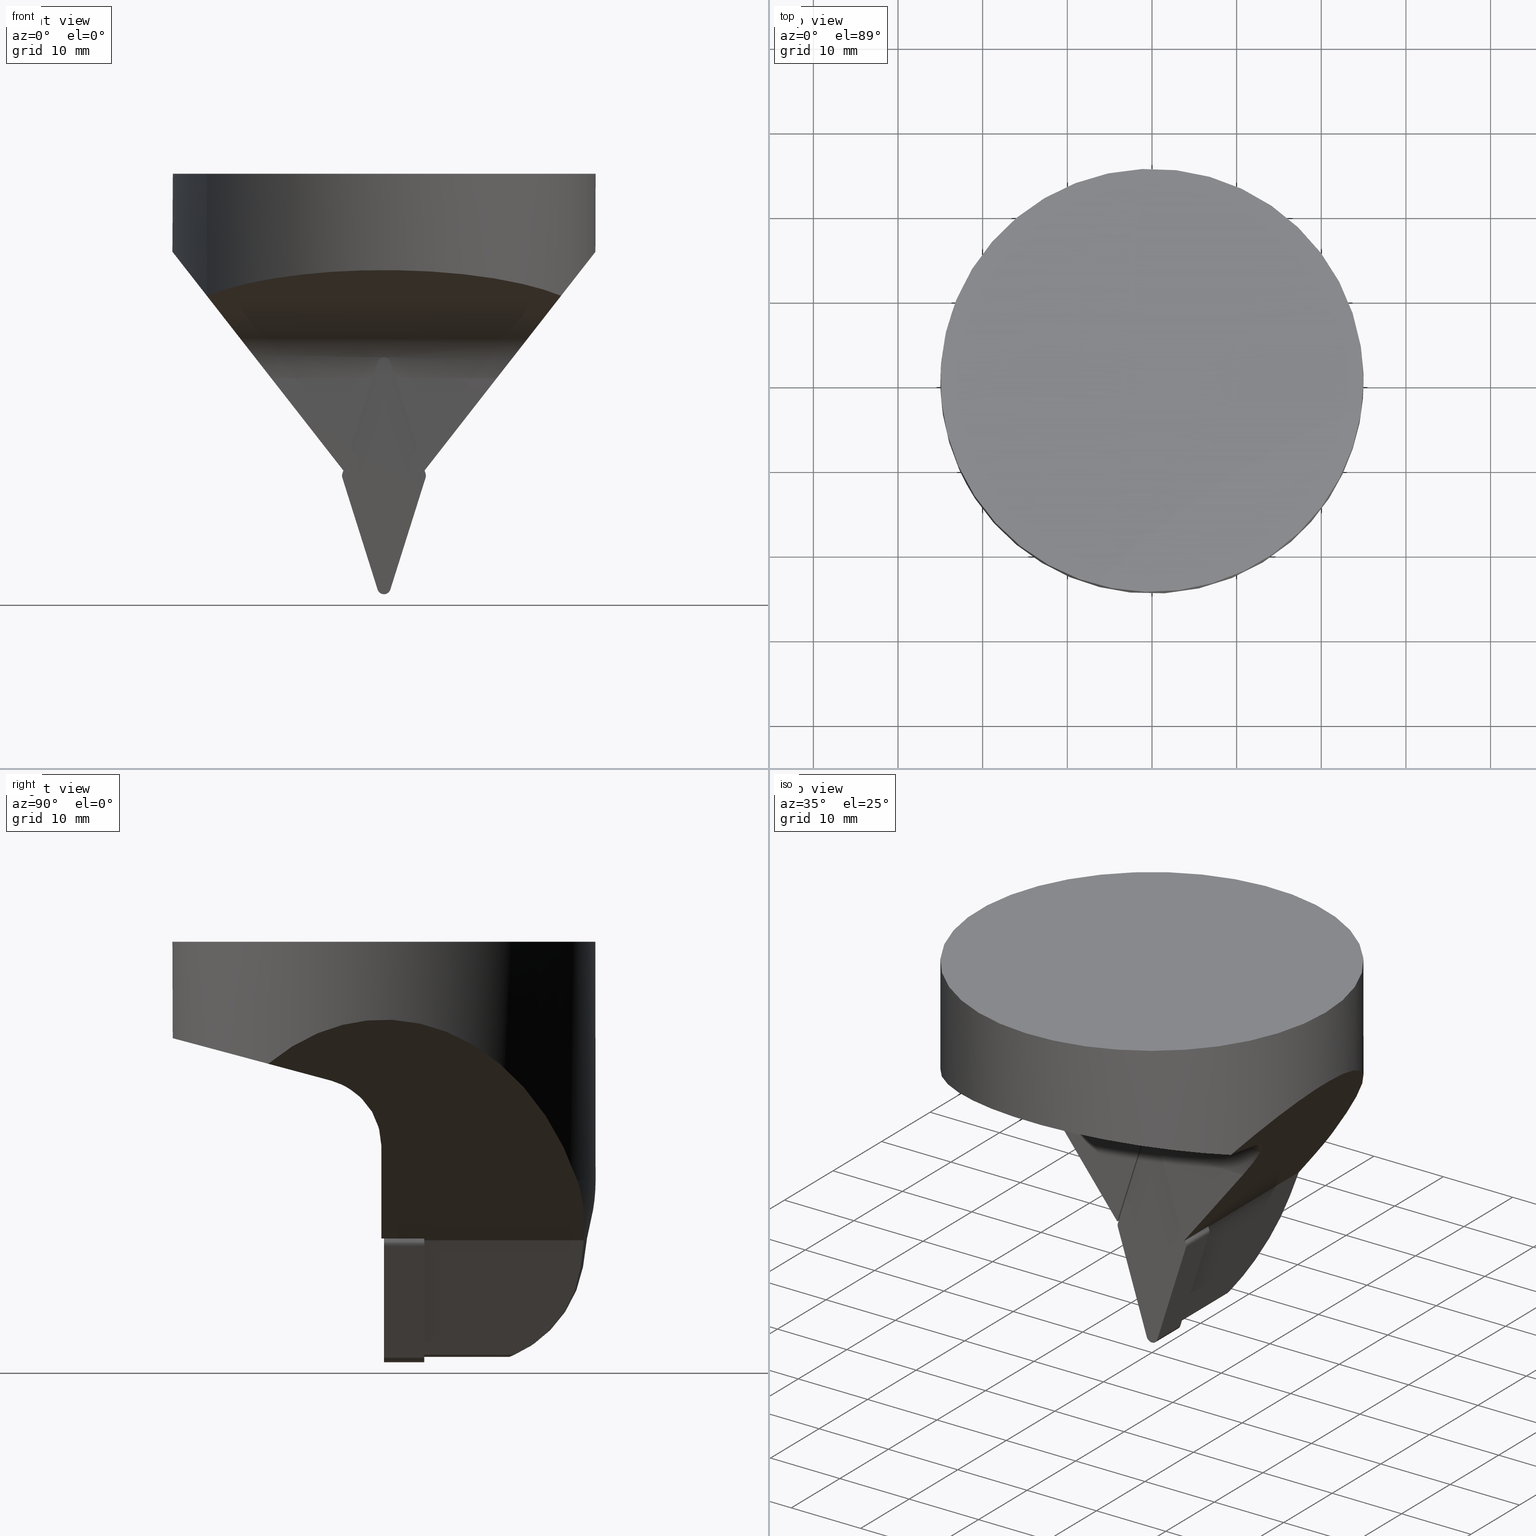
[diagram: canonical four-view strip — front | top / right | iso, engineering-drawing reading convention]
A machine part, canonical four-view strip (front | top / right | iso — engineering-drawing reading convention). The complete STEP part file that produces these views, byte-faithful:
ISO-10303-21;
HEADER;
FILE_DESCRIPTION((''),'1');
FILE_NAME('//Big_tech03/bigt/Translate/11_3D_Field/02_Step_Field/91_\X2\65CB524A30C430FC30EB\X0\/S\X2\30AB30FC30C830EA30C330B8\X0\/S50-SVQBN-00050-16.stp','2012-12-26T09:13:58',(''),(''),'Spatial Interop R18','Kubotek KeyCreator V8.5.1 (14335)',' ');
FILE_SCHEMA(('CONFIG_CONTROL_DESIGN'));
ENDSEC;
DATA;
#1=DESIGN_CONTEXT('',#27,'design');
#2=APPLICATION_PROTOCOL_DEFINITION('INTERNATIONAL STANDARD','config_control_design',1994,#27);
#3=PRODUCT_CATEGORY_RELATIONSHIP('NONE','NONE',#28,#29);
#4=DATE_AND_TIME(#30,#31);
#5=DATE_TIME_ROLE('creation_date');
#6=DATE_TIME_ROLE('classification_date');
#7=PERSON_AND_ORGANIZATION_ROLE('creator');
#8=PERSON_AND_ORGANIZATION_ROLE('design_supplier');
#9=PERSON_AND_ORGANIZATION_ROLE('classification_officer');
#10=PERSON_AND_ORGANIZATION_ROLE('design_owner');
#11=APPROVAL_PERSON_ORGANIZATION(#32,#33,#34);
#12=APPROVAL_DATE_TIME(#4,#33);
#13=CC_DESIGN_APPROVAL(#33,(#35,#36,#37));
#14=CC_DESIGN_DATE_AND_TIME_ASSIGNMENT(#4,#5,(#37));
#15=CC_DESIGN_DATE_AND_TIME_ASSIGNMENT(#4,#6,(#35));
#16=CC_DESIGN_PERSON_AND_ORGANIZATION_ASSIGNMENT(#32,#10,(#38));
#17=CC_DESIGN_PERSON_AND_ORGANIZATION_ASSIGNMENT(#32,#7,(#37));
#18=CC_DESIGN_PERSON_AND_ORGANIZATION_ASSIGNMENT(#32,#7,(#36));
#19=CC_DESIGN_PERSON_AND_ORGANIZATION_ASSIGNMENT(#32,#8,(#36));
#20=CC_DESIGN_SECURITY_CLASSIFICATION(#35,(#36));
#21=CC_DESIGN_PERSON_AND_ORGANIZATION_ASSIGNMENT(#32,#9,(#35));
#22=SHAPE_DEFINITION_REPRESENTATION(#39,#40);
#23= (GEOMETRIC_REPRESENTATION_CONTEXT(3)GLOBAL_UNCERTAINTY_ASSIGNED_CONTEXT((#43))GLOBAL_UNIT_ASSIGNED_CONTEXT((#45,#46,#47))REPRESENTATION_CONTEXT('NONE','WORKSPACE'));
#27=APPLICATION_CONTEXT('CONFIGURATION CONTROLLED 3D DESIGNS OF MECHANICAL PARTS AND ASSEMBLIES');
#28=PRODUCT_CATEGORY('part','NONE');
#29=PRODUCT_RELATED_PRODUCT_CATEGORY('detail',' ',(#38));
#30=CALENDAR_DATE(2012,26,11);
#31=LOCAL_TIME(18,13,58.0,#49);
#32=PERSON_AND_ORGANIZATION(#50,#51);
#33=APPROVAL(#52,'SOLID MODEL');
#34=APPROVAL_ROLE('APPROVED');
#35=SECURITY_CLASSIFICATION('','',#53);
#36=PRODUCT_DEFINITION_FORMATION_WITH_SPECIFIED_SOURCE(' ','NONE',#38,.NOT_KNOWN.);
#37=PRODUCT_DEFINITION('NONE','NONE',#36,#1);
#38=PRODUCT('1','1','PART-1-DESC',(#54));
#39=PRODUCT_DEFINITION_SHAPE('NONE','NONE',#37);
#40=ADVANCED_BREP_SHAPE_REPRESENTATION('1',(#55,#56),#23);
#43=UNCERTAINTY_MEASURE_WITH_UNIT(LENGTH_MEASURE(1.0E-006),#45,'','');
#45= (CONVERSION_BASED_UNIT('MILLIMETRE',#59)LENGTH_UNIT()NAMED_UNIT(#62));
#46= (NAMED_UNIT(#64)PLANE_ANGLE_UNIT()SI_UNIT($,.RADIAN.));
#47= (NAMED_UNIT(#64)SOLID_ANGLE_UNIT()SI_UNIT($,.STERADIAN.));
#49=COORDINATED_UNIVERSAL_TIME_OFFSET(9,0,.AHEAD.);
#50=PERSON('','UNSPECIFIED',$,$,$,$);
#51=ORGANIZATION('UNSPECIFIED','UNSPECIFIED','UNSPECIFIED');
#52=APPROVAL_STATUS('approved');
#53=SECURITY_CLASSIFICATION_LEVEL('unclassified');
#54=MECHANICAL_CONTEXT('',#27,'mechanical');
#55=MANIFOLD_SOLID_BREP('1',#70);
#56=AXIS2_PLACEMENT_3D('',#71,#72,#73);
#59=LENGTH_MEASURE_WITH_UNIT(LENGTH_MEASURE(1.0),#74);
#62=DIMENSIONAL_EXPONENTS(1.0,0.0,0.0,0.0,0.0,0.0,0.0);
#64=DIMENSIONAL_EXPONENTS(0.0,0.0,0.0,0.0,0.0,0.0,0.0);
#70=CLOSED_SHELL('',(#75,#76,#77,#78,#79,#80,#81,#82,#83,#84,#85,#86,#87,#88,#89,#90,#91,#92,#93,#94,#95,#96,#97,#98,#99,#100,#101,#102));
#71=CARTESIAN_POINT('',(0.0,0.0,0.0));
#72=DIRECTION('',(0.0,0.0,1.0));
#73=DIRECTION('',(1.0,0.0,0.0));
#74= (NAMED_UNIT(#62)LENGTH_UNIT()SI_UNIT(.MILLI.,.METRE.));
#75=ADVANCED_FACE('',(#104),#105,.T.);
#76=ADVANCED_FACE('',(#106),#107,.T.);
#77=ADVANCED_FACE('',(#108),#109,.T.);
#78=ADVANCED_FACE('',(#110),#111,.T.);
#79=ADVANCED_FACE('',(#112),#113,.T.);
#80=ADVANCED_FACE('',(#114),#115,.T.);
#81=ADVANCED_FACE('',(#116),#117,.T.);
#82=ADVANCED_FACE('',(#118),#119,.T.);
#83=ADVANCED_FACE('',(#120),#121,.F.);
#84=ADVANCED_FACE('',(#122),#123,.F.);
#85=ADVANCED_FACE('',(#124),#125,.F.);
#86=ADVANCED_FACE('',(#126),#127,.F.);
#87=ADVANCED_FACE('',(#128),#129,.F.);
#88=ADVANCED_FACE('',(#130),#131,.F.);
#89=ADVANCED_FACE('',(#132),#133,.F.);
#90=ADVANCED_FACE('',(#134),#135,.F.);
#91=ADVANCED_FACE('',(#136),#137,.T.);
#92=ADVANCED_FACE('',(#138),#139,.F.);
#93=ADVANCED_FACE('',(#140),#141,.T.);
#94=ADVANCED_FACE('',(#142,#143),#144,.T.);
#95=ADVANCED_FACE('',(#145),#146,.T.);
#96=ADVANCED_FACE('',(#147),#148,.T.);
#97=ADVANCED_FACE('',(#149),#150,.T.);
#98=ADVANCED_FACE('',(#151),#152,.T.);
#99=ADVANCED_FACE('',(#153),#154,.T.);
#100=ADVANCED_FACE('',(#155),#156,.F.);
#101=ADVANCED_FACE('',(#157),#158,.F.);
#102=ADVANCED_FACE('',(#159),#160,.F.);
#104=FACE_OUTER_BOUND('',#161,.T.);
#105=PLANE('',#162);
#106=FACE_OUTER_BOUND('',#163,.T.);
#107=CYLINDRICAL_SURFACE('',#164,0.8);
#108=FACE_OUTER_BOUND('',#165,.T.);
#109=PLANE('',#166);
#110=FACE_OUTER_BOUND('',#167,.T.);
#111=(B_SPLINE_SURFACE(1,2,((#169,#170,#171,#172,#173,#174,#175,#176,#177),(#178,#179,#180,#181,#182,#183,#184,#185,#186)),.UNSPECIFIED.,.F.,.T.,.F.)B_SPLINE_SURFACE_WITH_KNOTS((2,2),(3,2,2,2,3),(-5.71310793192006,0.0),(0.0,1.30874308776289,2.61748617552577,3.92622926328866,5.23497235105155),.UNSPECIFIED.)RATIONAL_B_SPLINE_SURFACE(((1.0,0.707106781186547,1.0,0.707106781186547,1.0,0.707106781186547,1.0,0.707106781186547,1.0),(1.0,0.707106781186547,1.0,0.707106781186547,1.0,0.707106781186547,1.0,0.707106781186547,1.0)))BOUNDED_SURFACE()REPRESENTATION_ITEM('')GEOMETRIC_REPRESENTATION_ITEM()SURFACE());
#112=FACE_OUTER_BOUND('',#193,.T.);
#113=PLANE('',#194);
#114=FACE_OUTER_BOUND('',#195,.T.);
#115=(B_SPLINE_SURFACE(1,2,((#197,#198,#199,#200,#201,#202,#203,#204,#205),(#206,#207,#208,#209,#210,#211,#212,#213,#214)),.UNSPECIFIED.,.F.,.T.,.F.)B_SPLINE_SURFACE_WITH_KNOTS((2,2),(3,2,2,2,3),(-5.92512168053696,0.0),(0.0,1.26191341185522,2.52382682371043,3.78574023556565,5.04765364742086),.UNSPECIFIED.)RATIONAL_B_SPLINE_SURFACE(((1.0,0.707106781186547,1.0,0.707106781186547,1.0,0.707106781186547,1.0,0.707106781186547,1.0),(1.0,0.707106781186547,1.0,0.707106781186547,1.0,0.707106781186547,1.0,0.707106781186547,1.0)))BOUNDED_SURFACE()REPRESENTATION_ITEM('')GEOMETRIC_REPRESENTATION_ITEM()SURFACE());
#116=FACE_OUTER_BOUND('',#221,.T.);
#117=PLANE('',#222);
#118=FACE_OUTER_BOUND('',#223,.T.);
#119=PLANE('',#224);
#120=FACE_OUTER_BOUND('',#225,.T.);
#121=PLANE('',#226);
#122=FACE_OUTER_BOUND('',#227,.T.);
#123=PLANE('',#228);
#124=FACE_OUTER_BOUND('',#229,.T.);
#125=(B_SPLINE_SURFACE(1,2,((#231,#232,#233,#234,#235,#236,#237,#238,#239),(#240,#241,#242,#243,#244,#245,#246,#247,#248)),.UNSPECIFIED.,.F.,.T.,.F.)B_SPLINE_SURFACE_WITH_KNOTS((2,2),(3,2,2,2,3),(-0.360069827642022,0.521709476953868),(0.0,1.30874308776289,2.61748617552578,3.92622926328866,5.23497235105155),.UNSPECIFIED.)RATIONAL_B_SPLINE_SURFACE(((1.0,0.707106781186547,1.0,0.707106781186547,1.0,0.707106781186547,1.0,0.707106781186547,1.0),(1.0,0.707106781186547,1.0,0.707106781186547,1.0,0.707106781186547,1.0,0.707106781186547,1.0)))BOUNDED_SURFACE()REPRESENTATION_ITEM('')GEOMETRIC_REPRESENTATION_ITEM()SURFACE());
#126=FACE_OUTER_BOUND('',#255,.T.);
#127=PLANE('',#256);
#128=FACE_OUTER_BOUND('',#257,.T.);
#129=CYLINDRICAL_SURFACE('',#258,8.0);
#130=FACE_OUTER_BOUND('',#259,.T.);
#131=PLANE('',#260);
#132=FACE_OUTER_BOUND('',#261,.T.);
#133=PLANE('',#262);
#134=FACE_OUTER_BOUND('',#263,.T.);
#135=PLANE('',#264);
#136=FACE_OUTER_BOUND('',#265,.T.);
#137=CYLINDRICAL_SURFACE('',#266,0.4);
#138=FACE_OUTER_BOUND('',#267,.T.);
#139=PLANE('',#268);
#140=FACE_OUTER_BOUND('',#269,.T.);
#141=TOROIDAL_SURFACE('',#270,9.72606554936144,13.9999999999999);
#142=FACE_BOUND('',#271,.T.);
#143=FACE_BOUND('',#272,.T.);
#144=CYLINDRICAL_SURFACE('',#273,25.0);
#145=FACE_OUTER_BOUND('',#274,.T.);
#146=TOROIDAL_SURFACE('',#275,4.99999999998082,20.0000000000001);
#147=FACE_OUTER_BOUND('',#276,.T.);
#148=TOROIDAL_SURFACE('',#277,9.72606554937411,13.9999999999999);
#149=FACE_OUTER_BOUND('',#278,.T.);
#150=CONICAL_SURFACE('',#279,23.2367301929155,0.174532924999441);
#151=FACE_OUTER_BOUND('',#280,.T.);
#152=TOROIDAL_SURFACE('',#281,5.00000000002026,19.9999999999999);
#153=FACE_OUTER_BOUND('',#282,.T.);
#154=PLANE('',#283);
#155=FACE_OUTER_BOUND('',#284,.T.);
#156=PLANE('',#285);
#157=FACE_OUTER_BOUND('',#286,.T.);
#158=PLANE('',#287);
#159=FACE_OUTER_BOUND('',#288,.T.);
#160=PLANE('',#289);
#161=EDGE_LOOP('',(#290,#291,#292,#293));
#162=AXIS2_PLACEMENT_3D('',#294,#295,#296);
#163=EDGE_LOOP('',(#297,#298,#299,#300));
#164=AXIS2_PLACEMENT_3D('',#301,#302,#303);
#165=EDGE_LOOP('',(#304,#305,#306,#307));
#166=AXIS2_PLACEMENT_3D('',#308,#309,#310);
#167=EDGE_LOOP('',(#311,#312,#313,#314));
#169=CARTESIAN_POINT('',(1.55004139944986E-006,6.21724893790088E-015,-48.0119974350419));
#170=CARTESIAN_POINT('',(-0.799998449958602,6.21724893790088E-015,-48.0119974350419));
#171=CARTESIAN_POINT('',(-0.799998449958599,6.21724893790088E-015,-48.8451691616611));
#172=CARTESIAN_POINT('',(-0.799998449958597,6.21724893790088E-015,-49.6783408882804));
#173=CARTESIAN_POINT('',(1.55004140434762E-006,6.21724893790088E-015,-49.6783408882804));
#174=CARTESIAN_POINT('',(0.800001550041405,6.21724893790088E-015,-49.6783408882804));
#175=CARTESIAN_POINT('',(0.800001550041403,6.21724893790088E-015,-48.8451691616611));
#176=CARTESIAN_POINT('',(0.800001550041401,6.21724893790088E-015,-48.0119974350419));
#177=CARTESIAN_POINT('',(1.55004139944986E-006,6.21724893790088E-015,-48.0119974350419));
#178=CARTESIAN_POINT('',(1.55004139944986E-006,4.76000000000001,-48.0119974350419));
#179=CARTESIAN_POINT('',(-0.799998449958602,4.76000000000001,-48.0119974350419));
#180=CARTESIAN_POINT('',(-0.799998449958599,4.76000000000001,-48.8451691616611));
#181=CARTESIAN_POINT('',(-0.799998449958597,4.76000000000001,-49.6783408882804));
#182=CARTESIAN_POINT('',(1.55004140434762E-006,4.76000000000001,-49.6783408882804));
#183=CARTESIAN_POINT('',(0.800001550041405,4.76000000000001,-49.6783408882804));
#184=CARTESIAN_POINT('',(0.800001550041403,4.76000000000001,-48.8451691616611));
#185=CARTESIAN_POINT('',(0.800001550041401,4.76000000000001,-48.0119974350419));
#186=CARTESIAN_POINT('',(1.55004139944986E-006,4.76000000000001,-48.0119974350419));
#193=EDGE_LOOP('',(#315,#316,#317,#318));
#194=AXIS2_PLACEMENT_3D('',#319,#320,#321);
#195=EDGE_LOOP('',(#322,#323,#324,#325));
#197=CARTESIAN_POINT('',(-3.3482319105922,6.21724893790088E-015,-35.6779999999999));
#198=CARTESIAN_POINT('',(-3.3482319105922,6.21724893790088E-015,-34.8779999999999));
#199=CARTESIAN_POINT('',(-4.15159093959506,6.21724893790088E-015,-34.8779999999999));
#200=CARTESIAN_POINT('',(-4.95494996859793,6.21724893790088E-015,-34.8779999999999));
#201=CARTESIAN_POINT('',(-4.95494996859793,6.21724893790088E-015,-35.6779999999999));
#202=CARTESIAN_POINT('',(-4.95494996859793,6.21724893790088E-015,-36.4779999999999));
#203=CARTESIAN_POINT('',(-4.15159093959506,6.21724893790088E-015,-36.4779999999999));
#204=CARTESIAN_POINT('',(-3.3482319105922,6.21724893790088E-015,-36.4779999999999));
#205=CARTESIAN_POINT('',(-3.3482319105922,6.21724893790088E-015,-35.6779999999999));
#206=CARTESIAN_POINT('',(-3.3482319105922,4.76000000000001,-35.6779999999999));
#207=CARTESIAN_POINT('',(-3.3482319105922,4.76000000000001,-34.8779999999999));
#208=CARTESIAN_POINT('',(-4.15159093959506,4.76000000000001,-34.8779999999999));
#209=CARTESIAN_POINT('',(-4.95494996859793,4.76000000000001,-34.8779999999999));
#210=CARTESIAN_POINT('',(-4.95494996859793,4.76000000000001,-35.6779999999999));
#211=CARTESIAN_POINT('',(-4.95494996859793,4.76000000000001,-36.4779999999999));
#212=CARTESIAN_POINT('',(-4.15159093959506,4.76000000000001,-36.4779999999999));
#213=CARTESIAN_POINT('',(-3.3482319105922,4.76000000000001,-36.4779999999999));
#214=CARTESIAN_POINT('',(-3.3482319105922,4.76000000000001,-35.6779999999999));
#221=EDGE_LOOP('',(#326,#327,#328,#329));
#222=AXIS2_PLACEMENT_3D('',#330,#331,#332);
#223=EDGE_LOOP('',(#333,#334,#335,#336,#337,#338,#339,#340,#341,#342,#343,#344));
#224=AXIS2_PLACEMENT_3D('',#345,#346,#347);
#225=EDGE_LOOP('',(#348,#349,#350,#351,#352,#353,#354,#355,#356,#357));
#226=AXIS2_PLACEMENT_3D('',#358,#359,#360);
#227=EDGE_LOOP('',(#361,#362,#363,#364,#365));
#228=AXIS2_PLACEMENT_3D('',#366,#367,#368);
#229=EDGE_LOOP('',(#369,#370,#371,#372));
#231=CARTESIAN_POINT('',(1.55004126281065E-006,7.21644966006352E-015,-21.6776591117197));
#232=CARTESIAN_POINT('',(0.800001550041263,7.21644966006352E-015,-21.6776591117197));
#233=CARTESIAN_POINT('',(0.800001550041265,7.21644966006352E-015,-22.510830838339));
#234=CARTESIAN_POINT('',(0.800001550041266,7.21644966006352E-015,-23.3440025649582));
#235=CARTESIAN_POINT('',(1.55004126565152E-006,7.21644966006352E-015,-23.3440025649582));
#236=CARTESIAN_POINT('',(-0.799998449958735,7.21644966006352E-015,-23.3440025649582));
#237=CARTESIAN_POINT('',(-0.799998449958736,7.21644966006352E-015,-22.510830838339));
#238=CARTESIAN_POINT('',(-0.799998449958737,7.21644966006352E-015,-21.6776591117197));
#239=CARTESIAN_POINT('',(1.55004126281065E-006,7.21644966006352E-015,-21.6776591117197));
#240=CARTESIAN_POINT('',(1.55004126281065E-006,-0.734673585707276,-21.6776591117197));
#241=CARTESIAN_POINT('',(0.800001550041263,-0.734673585707276,-21.6776591117197));
#242=CARTESIAN_POINT('',(0.800001550041265,-0.734673585707276,-22.510830838339));
#243=CARTESIAN_POINT('',(0.800001550041266,-0.734673585707276,-23.3440025649582));
#244=CARTESIAN_POINT('',(1.55004126565152E-006,-0.734673585707276,-23.3440025649582));
#245=CARTESIAN_POINT('',(-0.799998449958735,-0.734673585707276,-23.3440025649582));
#246=CARTESIAN_POINT('',(-0.799998449958736,-0.734673585707276,-22.510830838339));
#247=CARTESIAN_POINT('',(-0.799998449958737,-0.734673585707276,-21.6776591117197));
#248=CARTESIAN_POINT('',(1.55004126281065E-006,-0.734673585707276,-21.6776591117197));
#255=EDGE_LOOP('',(#373,#374,#375,#376,#377));
#256=AXIS2_PLACEMENT_3D('',#378,#379,#380);
#257=EDGE_LOOP('',(#381,#382,#383,#384,#385,#386,#387,#388));
#258=AXIS2_PLACEMENT_3D('',#389,#390,#391);
#259=EDGE_LOOP('',(#392,#393,#394));
#260=AXIS2_PLACEMENT_3D('',#395,#396,#397);
#261=EDGE_LOOP('',(#398,#399,#400,#401,#402,#403,#404,#405,#406,#407));
#262=AXIS2_PLACEMENT_3D('',#408,#409,#410);
#263=EDGE_LOOP('',(#411,#412,#413,#414,#415));
#264=AXIS2_PLACEMENT_3D('',#416,#417,#418);
#265=EDGE_LOOP('',(#419,#420,#421,#422,#423));
#266=AXIS2_PLACEMENT_3D('',#424,#425,#426);
#267=EDGE_LOOP('',(#427,#428,#429));
#268=AXIS2_PLACEMENT_3D('',#430,#431,#432);
#269=EDGE_LOOP('',(#433,#434,#435,#436));
#270=AXIS2_PLACEMENT_3D('',#437,#438,#439);
#271=EDGE_LOOP('',(#440));
#272=EDGE_LOOP('',(#441,#442,#443,#444,#445));
#273=AXIS2_PLACEMENT_3D('',#446,#447,#448);
#274=EDGE_LOOP('',(#449,#450,#451,#452));
#275=AXIS2_PLACEMENT_3D('',#453,#454,#455);
#276=EDGE_LOOP('',(#456,#457,#458,#459));
#277=AXIS2_PLACEMENT_3D('',#460,#461,#462);
#278=EDGE_LOOP('',(#463,#464,#465,#466,#467,#468,#469,#470));
#279=AXIS2_PLACEMENT_3D('',#471,#472,#473);
#280=EDGE_LOOP('',(#474,#475,#476,#477));
#281=AXIS2_PLACEMENT_3D('',#478,#479,#480);
#282=EDGE_LOOP('',(#481));
#283=AXIS2_PLACEMENT_3D('',#482,#483,#484);
#284=EDGE_LOOP('',(#485,#486,#487,#488));
#285=AXIS2_PLACEMENT_3D('',#489,#490,#491);
#286=EDGE_LOOP('',(#492,#493,#494,#495,#496,#497,#498,#499,#500,#501));
#287=AXIS2_PLACEMENT_3D('',#502,#503,#504);
#288=EDGE_LOOP('',(#505,#506,#507,#508,#509));
#289=AXIS2_PLACEMENT_3D('',#510,#511,#512);
#290=ORIENTED_EDGE('',*,*,#513,.F.);
#291=ORIENTED_EDGE('',*,*,#514,.T.);
#292=ORIENTED_EDGE('',*,*,#515,.F.);
#293=ORIENTED_EDGE('',*,*,#516,.T.);
#294=CARTESIAN_POINT('',(4.79834896927209,4.76000000000001,-35.0586746368965));
#295=DIRECTION('',(0.953716950798277,0.0,0.300705799345533));
#296=DIRECTION('',(0.300705799345533,0.0,-0.953716950798277));
#297=ORIENTED_EDGE('',*,*,#517,.T.);
#298=ORIENTED_EDGE('',*,*,#518,.F.);
#299=ORIENTED_EDGE('',*,*,#519,.T.);
#300=ORIENTED_EDGE('',*,*,#515,.T.);
#301=CARTESIAN_POINT('',(4.15479820841177,4.76000000000001,-35.6780000076533));
#302=DIRECTION('',(-0.0,1.0,-0.0));
#303=DIRECTION('',(0.953716950698177,0.0,-0.300705799663013));
#304=ORIENTED_EDGE('',*,*,#520,.T.);
#305=ORIENTED_EDGE('',*,*,#521,.F.);
#306=ORIENTED_EDGE('',*,*,#522,.T.);
#307=ORIENTED_EDGE('',*,*,#518,.T.);
#308=CARTESIAN_POINT('',(4.91777176897031,4.76000000000001,-35.9185646473837));
#309=DIRECTION('',(0.953716950698177,0.0,-0.300705799663012));
#310=DIRECTION('',(-0.300705799663012,0.0,-0.953716950698177));
#311=ORIENTED_EDGE('',*,*,#523,.T.);
#312=ORIENTED_EDGE('',*,*,#524,.F.);
#313=ORIENTED_EDGE('',*,*,#525,.T.);
#314=ORIENTED_EDGE('',*,*,#521,.T.);
#315=ORIENTED_EDGE('',*,*,#526,.T.);
#316=ORIENTED_EDGE('',*,*,#527,.F.);
#317=ORIENTED_EDGE('',*,*,#528,.T.);
#318=ORIENTED_EDGE('',*,*,#524,.T.);
#319=CARTESIAN_POINT('',(-0.760068665811087,4.76000000000001,-49.1051043592734));
#320=DIRECTION('',(-0.953716950748227,0.0,-0.300705799504273));
#321=DIRECTION('',(-0.300705799504273,0.0,0.953716950748227));
#322=ORIENTED_EDGE('',*,*,#529,.T.);
#323=ORIENTED_EDGE('',*,*,#530,.F.);
#324=ORIENTED_EDGE('',*,*,#531,.T.);
#325=ORIENTED_EDGE('',*,*,#527,.T.);
#326=ORIENTED_EDGE('',*,*,#532,.F.);
#327=ORIENTED_EDGE('',*,*,#533,.T.);
#328=ORIENTED_EDGE('',*,*,#530,.T.);
#329=ORIENTED_EDGE('',*,*,#534,.T.);
#330=CARTESIAN_POINT('',(-4.91805730008617,4.76000000000001,-35.4383507814787));
#331=DIRECTION('',(-0.953716950748228,0.0,0.300705799504268));
#332=DIRECTION('',(0.300705799504268,0.0,0.953716950748228));
#333=ORIENTED_EDGE('',*,*,#535,.F.);
#334=ORIENTED_EDGE('',*,*,#516,.F.);
#335=ORIENTED_EDGE('',*,*,#519,.F.);
#336=ORIENTED_EDGE('',*,*,#522,.F.);
#337=ORIENTED_EDGE('',*,*,#525,.F.);
#338=ORIENTED_EDGE('',*,*,#528,.F.);
#339=ORIENTED_EDGE('',*,*,#531,.F.);
#340=ORIENTED_EDGE('',*,*,#533,.F.);
#341=ORIENTED_EDGE('',*,*,#536,.F.);
#342=ORIENTED_EDGE('',*,*,#537,.F.);
#343=ORIENTED_EDGE('',*,*,#538,.F.);
#344=ORIENTED_EDGE('',*,*,#539,.F.);
#345=CARTESIAN_POINT('',(-4.73169356123709E-006,4.76000000000001,-42.353558676864));
#346=DIRECTION('',(-1.17863195093133E-031,1.0,4.4177459658526E-030));
#347=DIRECTION('',(0.0,-4.4177459658526E-030,1.0));
#348=ORIENTED_EDGE('',*,*,#534,.F.);
#349=ORIENTED_EDGE('',*,*,#529,.F.);
#350=ORIENTED_EDGE('',*,*,#526,.F.);
#351=ORIENTED_EDGE('',*,*,#523,.F.);
#352=ORIENTED_EDGE('',*,*,#520,.F.);
#353=ORIENTED_EDGE('',*,*,#517,.F.);
#354=ORIENTED_EDGE('',*,*,#514,.F.);
#355=ORIENTED_EDGE('',*,*,#540,.F.);
#356=ORIENTED_EDGE('',*,*,#541,.F.);
#357=ORIENTED_EDGE('',*,*,#542,.F.);
#358=CARTESIAN_POINT('',(-4.73169356124143E-006,7.21644966006352E-015,-42.353558676864));
#359=DIRECTION('',(3.14366464482046E-031,1.0,1.50022068683728E-030));
#360=DIRECTION('',(0.0,-1.50022068683728E-030,1.0));
#361=ORIENTED_EDGE('',*,*,#542,.T.);
#362=ORIENTED_EDGE('',*,*,#543,.F.);
#363=ORIENTED_EDGE('',*,*,#544,.F.);
#364=ORIENTED_EDGE('',*,*,#545,.F.);
#365=ORIENTED_EDGE('',*,*,#546,.F.);
#366=CARTESIAN_POINT('',(-0.760068665811215,-0.299999999999994,-22.2508956407267));
#367=DIRECTION('',(-0.953716950748228,0.0,0.300705799504269));
#368=DIRECTION('',(0.300705799504269,0.0,0.953716950748228));
#369=ORIENTED_EDGE('',*,*,#541,.T.);
#370=ORIENTED_EDGE('',*,*,#547,.F.);
#371=ORIENTED_EDGE('',*,*,#548,.F.);
#372=ORIENTED_EDGE('',*,*,#543,.T.);
#373=ORIENTED_EDGE('',*,*,#540,.T.);
#374=ORIENTED_EDGE('',*,*,#549,.F.);
#375=ORIENTED_EDGE('',*,*,#550,.F.);
#376=ORIENTED_EDGE('',*,*,#551,.F.);
#377=ORIENTED_EDGE('',*,*,#547,.T.);
#378=CARTESIAN_POINT('',(4.91777176901035,-0.299999999999994,-35.4374353680499));
#379=DIRECTION('',(0.953716950798277,0.0,0.300705799345533));
#380=DIRECTION('',(0.300705799345533,0.0,-0.953716950798277));
#381=ORIENTED_EDGE('',*,*,#544,.T.);
#382=ORIENTED_EDGE('',*,*,#548,.T.);
#383=ORIENTED_EDGE('',*,*,#551,.T.);
#384=ORIENTED_EDGE('',*,*,#552,.T.);
#385=ORIENTED_EDGE('',*,*,#553,.T.);
#386=ORIENTED_EDGE('',*,*,#554,.T.);
#387=ORIENTED_EDGE('',*,*,#555,.T.);
#388=ORIENTED_EDGE('',*,*,#556,.T.);
#389=CARTESIAN_POINT('',(4.13874011839544E-013,-8.29999999999999,-24.1386159038317));
#390=DIRECTION('',(1.0,-0.0,-0.0));
#391=DIRECTION('',(0.0,0.793353340291236,0.60876142900872));
#392=ORIENTED_EDGE('',*,*,#550,.T.);
#393=ORIENTED_EDGE('',*,*,#557,.F.);
#394=ORIENTED_EDGE('',*,*,#552,.F.);
#395=CARTESIAN_POINT('',(5.22721637762618E-013,-0.299999999999994,-18.0));
#396=DIRECTION('',(0.0,1.0,0.0));
#397=DIRECTION('',(0.0,0.0,1.0));
#398=ORIENTED_EDGE('',*,*,#549,.T.);
#399=ORIENTED_EDGE('',*,*,#513,.T.);
#400=ORIENTED_EDGE('',*,*,#535,.T.);
#401=ORIENTED_EDGE('',*,*,#558,.F.);
#402=ORIENTED_EDGE('',*,*,#559,.F.);
#403=ORIENTED_EDGE('',*,*,#560,.F.);
#404=ORIENTED_EDGE('',*,*,#561,.F.);
#405=ORIENTED_EDGE('',*,*,#562,.T.);
#406=ORIENTED_EDGE('',*,*,#553,.F.);
#407=ORIENTED_EDGE('',*,*,#557,.T.);
#408=CARTESIAN_POINT('',(4.63994938400571,-1.93761558541869E-015,-35.2614168606011));
#409=DIRECTION('',(-0.788010753606722,1.31871149599113E-016,0.615661475325658));
#410=DIRECTION('',(0.615661475325658,0.0,0.788010753606722));
#411=ORIENTED_EDGE('',*,*,#539,.T.);
#412=ORIENTED_EDGE('',*,*,#563,.F.);
#413=ORIENTED_EDGE('',*,*,#564,.F.);
#414=ORIENTED_EDGE('',*,*,#565,.F.);
#415=ORIENTED_EDGE('',*,*,#558,.T.);
#416=CARTESIAN_POINT('',(-7.22280345365487,-1.1381589884931E-015,-72.8852621022449));
#417=DIRECTION('',(-0.953716950748227,1.48403700808922E-016,0.300705799504273));
#418=DIRECTION('',(0.300705799504273,6.59044822310593E-033,0.953716950748227));
#419=ORIENTED_EDGE('',*,*,#538,.T.);
#420=ORIENTED_EDGE('',*,*,#566,.T.);
#421=ORIENTED_EDGE('',*,*,#567,.T.);
#422=ORIENTED_EDGE('',*,*,#568,.T.);
#423=ORIENTED_EDGE('',*,*,#563,.T.);
#424=CARTESIAN_POINT('',(-2.93073999577297E-007,-1.58582700582256E-015,-48.6472533302848));
#425=DIRECTION('',(-0.0,-1.0,-0.0));
#426=DIRECTION('',(0.0,0.0,-1.0));
#427=ORIENTED_EDGE('',*,*,#545,.T.);
#428=ORIENTED_EDGE('',*,*,#556,.F.);
#429=ORIENTED_EDGE('',*,*,#569,.F.);
#430=CARTESIAN_POINT('',(5.22721637762618E-013,-0.299999999999994,-18.0));
#431=DIRECTION('',(0.0,1.0,0.0));
#432=DIRECTION('',(0.0,0.0,1.0));
#433=ORIENTED_EDGE('',*,*,#568,.F.);
#434=ORIENTED_EDGE('',*,*,#570,.F.);
#435=ORIENTED_EDGE('',*,*,#571,.T.);
#436=ORIENTED_EDGE('',*,*,#564,.T.);
#437=CARTESIAN_POINT('',(-1.53224655186079E-012,-1.44728673490135E-011,-35.9999999999923));
#438=DIRECTION('',(-5.80440954780609E-014,-7.9766655402929E-013,-1.0));
#439=DIRECTION('',(-0.996980749790134,0.0776491117006681,-4.06925352310013E-015));
#440=ORIENTED_EDGE('',*,*,#572,.F.);
#441=ORIENTED_EDGE('',*,*,#561,.T.);
#442=ORIENTED_EDGE('',*,*,#573,.F.);
#443=ORIENTED_EDGE('',*,*,#574,.F.);
#444=ORIENTED_EDGE('',*,*,#575,.T.);
#445=ORIENTED_EDGE('',*,*,#576,.T.);
#446=CARTESIAN_POINT('',(3.95709471477376E-014,-9.91480993004866E-016,-25.0));
#447=DIRECTION('',(-0.0,-0.0,-1.0));
#448=DIRECTION('',(-1.0,0.0,0.0));
#449=ORIENTED_EDGE('',*,*,#577,.F.);
#450=ORIENTED_EDGE('',*,*,#573,.T.);
#451=ORIENTED_EDGE('',*,*,#560,.T.);
#452=ORIENTED_EDGE('',*,*,#578,.T.);
#453=CARTESIAN_POINT('',(2.93376434257198E-012,1.8908208332391E-011,-28.2502267297535));
#454=DIRECTION('',(-9.48031728153588E-012,-6.08017856103217E-011,1.0));
#455=DIRECTION('',(0.978377770261617,-0.206825865543716,-3.30005025217652E-012));
#456=ORIENTED_EDGE('',*,*,#567,.F.);
#457=ORIENTED_EDGE('',*,*,#579,.T.);
#458=ORIENTED_EDGE('',*,*,#580,.T.);
#459=ORIENTED_EDGE('',*,*,#570,.T.);
#460=CARTESIAN_POINT('',(8.40993941153556E-014,-2.72226685638088E-011,-35.9999999999872));
#461=DIRECTION('',(7.99993850962098E-015,-1.32317231493844E-012,-1.0));
#462=DIRECTION('',(-0.996980748810494,-0.0776491242788137,9.47673868391809E-014));
#463=ORIENTED_EDGE('',*,*,#565,.T.);
#464=ORIENTED_EDGE('',*,*,#571,.F.);
#465=ORIENTED_EDGE('',*,*,#580,.F.);
#466=ORIENTED_EDGE('',*,*,#581,.T.);
#467=ORIENTED_EDGE('',*,*,#582,.T.);
#468=ORIENTED_EDGE('',*,*,#583,.F.);
#469=ORIENTED_EDGE('',*,*,#578,.F.);
#470=ORIENTED_EDGE('',*,*,#559,.T.);
#471=CARTESIAN_POINT('',(3.77945903083374E-014,-1.37188709364429E-015,-40.000000000001));
#472=DIRECTION('',(-0.0,-0.0,1.0));
#473=DIRECTION('',(1.0,0.0,0.0));
#474=ORIENTED_EDGE('',*,*,#577,.T.);
#475=ORIENTED_EDGE('',*,*,#583,.T.);
#476=ORIENTED_EDGE('',*,*,#584,.T.);
#477=ORIENTED_EDGE('',*,*,#574,.T.);
#478=CARTESIAN_POINT('',(4.10352307689266E-012,-1.97419858238845E-011,-28.2502267296943));
#479=DIRECTION('',(9.82398194209891E-012,-4.87179384742911E-011,1.0));
#480=DIRECTION('',(0.978377767610177,0.206825878086197,4.64564881941152E-013));
#481=ORIENTED_EDGE('',*,*,#572,.T.);
#482=CARTESIAN_POINT('',(-12.5,1.49034295752804E-015,7.105427357601E-015));
#483=DIRECTION('',(0.0,0.0,1.0));
#484=DIRECTION('',(1.0,0.0,0.0));
#485=ORIENTED_EDGE('',*,*,#576,.F.);
#486=ORIENTED_EDGE('',*,*,#585,.F.);
#487=ORIENTED_EDGE('',*,*,#554,.F.);
#488=ORIENTED_EDGE('',*,*,#562,.F.);
#489=CARTESIAN_POINT('',(6.41794578793122E-013,-28.378692565242,-10.4763370026216));
#490=DIRECTION('',(1.61745616900077E-014,0.258819045102522,0.965925826289068));
#491=DIRECTION('',(1.0,6.53351123865643E-031,-1.67451384462384E-014));
#492=ORIENTED_EDGE('',*,*,#532,.T.);
#493=ORIENTED_EDGE('',*,*,#546,.T.);
#494=ORIENTED_EDGE('',*,*,#569,.T.);
#495=ORIENTED_EDGE('',*,*,#555,.F.);
#496=ORIENTED_EDGE('',*,*,#585,.T.);
#497=ORIENTED_EDGE('',*,*,#575,.F.);
#498=ORIENTED_EDGE('',*,*,#584,.F.);
#499=ORIENTED_EDGE('',*,*,#582,.F.);
#500=ORIENTED_EDGE('',*,*,#586,.F.);
#501=ORIENTED_EDGE('',*,*,#536,.T.);
#502=CARTESIAN_POINT('',(-110.119418697202,1.84505484374191E-014,99.7461465047559));
#503=DIRECTION('',(0.788010753606722,-1.00731325110704E-016,0.615661475325658));
#504=DIRECTION('',(0.615661475325658,0.0,-0.788010753606722));
#505=ORIENTED_EDGE('',*,*,#537,.T.);
#506=ORIENTED_EDGE('',*,*,#586,.T.);
#507=ORIENTED_EDGE('',*,*,#581,.F.);
#508=ORIENTED_EDGE('',*,*,#579,.F.);
#509=ORIENTED_EDGE('',*,*,#566,.F.);
#510=CARTESIAN_POINT('',(-4.63994997015373,-5.65813683394641E-016,-35.2614168606011));
#511=DIRECTION('',(0.953716950748227,-1.32815430293717E-016,0.300705799504273));
#512=DIRECTION('',(0.300705799504273,5.89818994950329E-033,-0.953716950748227));
#513=EDGE_CURVE('',#587,#588,#589,.T.);
#514=EDGE_CURVE('',#587,#590,#591,.T.);
#515=EDGE_CURVE('',#592,#590,#593,.T.);
#516=EDGE_CURVE('',#592,#588,#594,.T.);
#517=EDGE_CURVE('',#590,#595,#596,.T.);
#518=EDGE_CURVE('',#597,#595,#598,.T.);
#519=EDGE_CURVE('',#597,#592,#599,.T.);
#520=EDGE_CURVE('',#595,#600,#601,.T.);
#521=EDGE_CURVE('',#602,#600,#603,.T.);
#522=EDGE_CURVE('',#602,#597,#604,.T.);
#523=EDGE_CURVE('',#600,#605,#606,.T.);
#524=EDGE_CURVE('',#607,#605,#608,.T.);
#525=EDGE_CURVE('',#607,#602,#609,.T.);
#526=EDGE_CURVE('',#605,#610,#611,.T.);
#527=EDGE_CURVE('',#612,#610,#613,.T.);
#528=EDGE_CURVE('',#612,#607,#614,.T.);
#529=EDGE_CURVE('',#610,#615,#616,.T.);
#530=EDGE_CURVE('',#617,#615,#618,.T.);
#531=EDGE_CURVE('',#617,#612,#619,.T.);
#532=EDGE_CURVE('',#620,#621,#622,.T.);
#533=EDGE_CURVE('',#620,#617,#623,.T.);
#534=EDGE_CURVE('',#615,#621,#624,.T.);
#535=EDGE_CURVE('',#588,#625,#626,.T.);
#536=EDGE_CURVE('',#627,#620,#628,.T.);
#537=EDGE_CURVE('',#629,#627,#630,.T.);
#538=EDGE_CURVE('',#631,#629,#632,.T.);
#539=EDGE_CURVE('',#625,#631,#633,.T.);
#540=EDGE_CURVE('',#634,#587,#635,.T.);
#541=EDGE_CURVE('',#636,#634,#637,.T.);
#542=EDGE_CURVE('',#621,#636,#638,.T.);
#543=EDGE_CURVE('',#639,#636,#640,.T.);
#544=EDGE_CURVE('',#641,#639,#642,.T.);
#545=EDGE_CURVE('',#643,#641,#644,.T.);
#546=EDGE_CURVE('',#621,#643,#645,.T.);
#547=EDGE_CURVE('',#646,#634,#647,.T.);
#548=EDGE_CURVE('',#639,#646,#648,.T.);
#549=EDGE_CURVE('',#649,#587,#650,.T.);
#550=EDGE_CURVE('',#651,#649,#652,.T.);
#551=EDGE_CURVE('',#646,#651,#653,.T.);
#552=EDGE_CURVE('',#651,#654,#655,.T.);
#553=EDGE_CURVE('',#654,#656,#657,.T.);
#554=EDGE_CURVE('',#656,#658,#659,.T.);
#555=EDGE_CURVE('',#658,#660,#661,.T.);
#556=EDGE_CURVE('',#660,#641,#662,.T.);
#557=EDGE_CURVE('',#654,#649,#663,.T.);
#558=EDGE_CURVE('',#664,#625,#665,.T.);
#559=EDGE_CURVE('',#666,#664,#667,.T.);
#560=EDGE_CURVE('',#668,#666,#669,.T.);
#561=EDGE_CURVE('',#670,#668,#671,.T.);
#562=EDGE_CURVE('',#670,#656,#672,.T.);
#563=EDGE_CURVE('',#673,#631,#674,.T.);
#564=EDGE_CURVE('',#675,#673,#676,.T.);
#565=EDGE_CURVE('',#664,#675,#677,.T.);
#566=EDGE_CURVE('',#629,#678,#679,.T.);
#567=EDGE_CURVE('',#678,#680,#681,.T.);
#568=EDGE_CURVE('',#680,#673,#682,.T.);
#569=EDGE_CURVE('',#643,#660,#683,.T.);
#570=EDGE_CURVE('',#684,#680,#685,.T.);
#571=EDGE_CURVE('',#684,#675,#686,.T.);
#572=EDGE_CURVE('',#687,#687,#688,.T.);
#573=EDGE_CURVE('',#689,#668,#690,.T.);
#574=EDGE_CURVE('',#691,#689,#692,.T.);
#575=EDGE_CURVE('',#691,#693,#694,.T.);
#576=EDGE_CURVE('',#693,#670,#695,.T.);
#577=EDGE_CURVE('',#689,#696,#697,.T.);
#578=EDGE_CURVE('',#666,#696,#698,.T.);
#579=EDGE_CURVE('',#678,#699,#700,.T.);
#580=EDGE_CURVE('',#699,#684,#701,.T.);
#581=EDGE_CURVE('',#699,#702,#703,.T.);
#582=EDGE_CURVE('',#702,#704,#705,.T.);
#583=EDGE_CURVE('',#696,#704,#706,.T.);
#584=EDGE_CURVE('',#704,#691,#707,.T.);
#585=EDGE_CURVE('',#658,#693,#708,.T.);
#586=EDGE_CURVE('',#627,#702,#709,.T.);
#587=VERTEX_POINT('',#710);
#588=VERTEX_POINT('',#711);
#589=LINE('',#712,#713);
#590=VERTEX_POINT('',#714);
#591=LINE('',#715,#716);
#592=VERTEX_POINT('',#717);
#593=LINE('',#718,#719);
#594=LINE('',#720,#721);
#595=VERTEX_POINT('',#722);
#596=CIRCLE('',#723,0.8);
#597=VERTEX_POINT('',#724);
#598=LINE('',#725,#726);
#599=CIRCLE('',#727,0.8);
#600=VERTEX_POINT('',#728);
#601=LINE('',#729,#730);
#602=VERTEX_POINT('',#731);
#603=LINE('',#732,#733);
#604=LINE('',#734,#735);
#605=VERTEX_POINT('',#736);
#606=ELLIPSE('',#737,0.833171726619255,0.8);
#607=VERTEX_POINT('',#738);
#608=LINE('',#739,#740);
#609=ELLIPSE('',#741,0.833171726619255,0.8);
#610=VERTEX_POINT('',#742);
#611=LINE('',#743,#744);
#612=VERTEX_POINT('',#745);
#613=LINE('',#746,#747);
#614=LINE('',#748,#749);
#615=VERTEX_POINT('',#750);
#616=ELLIPSE('',#751,0.803359029002865,0.8);
#617=VERTEX_POINT('',#752);
#618=LINE('',#753,#754);
#619=ELLIPSE('',#755,0.803359029002865,0.8);
#620=VERTEX_POINT('',#756);
#621=VERTEX_POINT('',#757);
#622=LINE('',#758,#759);
#623=LINE('',#760,#761);
#624=LINE('',#762,#763);
#625=VERTEX_POINT('',#764);
#626=LINE('',#765,#766);
#627=VERTEX_POINT('',#767);
#628=LINE('',#768,#769);
#629=VERTEX_POINT('',#770);
#630=LINE('',#771,#772);
#631=VERTEX_POINT('',#773);
#632=CIRCLE('',#774,0.4);
#633=LINE('',#775,#776);
#634=VERTEX_POINT('',#777);
#635=LINE('',#778,#779);
#636=VERTEX_POINT('',#780);
#637=ELLIPSE('',#781,0.833171726619255,0.8);
#638=LINE('',#782,#783);
#639=VERTEX_POINT('',#784);
#640=LINE('',#785,#786);
#641=VERTEX_POINT('',#787);
#642=ELLIPSE('',#788,8.38823300112647,8.0);
#643=VERTEX_POINT('',#789);
#644=LINE('',#790,#791);
#645=LINE('',#792,#793);
#646=VERTEX_POINT('',#794);
#647=LINE('',#795,#796);
#648=B_SPLINE_CURVE_WITH_KNOTS('',3,(#797,#798,#799,#800,#801,#802,#803,#804,#805,#806,#807,#808,#809,#810,#811,#812,#813,#814),.UNSPECIFIED.,.F.,.F.,(4,2,2,2,2,2,2,2,4),(0.149925910773781,0.156383037177052,0.188858211951973,0.218962825548049,0.249067439144125,0.279172052740201,0.309276666336277,0.341751841111199,0.34820896751447),.UNSPECIFIED.);
#649=VERTEX_POINT('',#815);
#650=LINE('',#816,#817);
#651=VERTEX_POINT('',#818);
#652=LINE('',#819,#820);
#653=ELLIPSE('',#821,8.38823300068628,8.0);
#654=VERTEX_POINT('',#822);
#655=LINE('',#823,#824);
#656=VERTEX_POINT('',#825);
#657=ELLIPSE('',#826,10.1521457205805,8.0);
#658=VERTEX_POINT('',#827);
#659=LINE('',#828,#829);
#660=VERTEX_POINT('',#830);
#661=ELLIPSE('',#831,10.1521457205808,8.0);
#662=LINE('',#832,#833);
#663=LINE('',#834,#835);
#664=VERTEX_POINT('',#836);
#665=LINE('',#837,#838);
#666=VERTEX_POINT('',#839);
#667=ELLIPSE('',#840,39.4060995806154,23.6348780647814);
#668=VERTEX_POINT('',#841);
#669=CIRCLE('',#842,20.4956155323028);
#670=VERTEX_POINT('',#843);
#671=ELLIPSE('',#844,40.6067311370686,25.0);
#672=LINE('',#845,#846);
#673=VERTEX_POINT('',#847);
#674=LINE('',#848,#849);
#675=VERTEX_POINT('',#850);
#676=B_SPLINE_CURVE_WITH_KNOTS('',3,(#851,#852,#853,#854,#855,#856,#857,#858,#859,#860,#861,#862,#863,#864,#865,#866,#867,#868,#869,#870,#871,#872,#873,#874,#875,#876),.UNSPECIFIED.,.F.,.F.,(4,2,2,2,2,2,2,2,2,2,2,2,4),(-28.6007282508324,-28.4422377030003,-26.7706772018078,-25.1187501837178,-23.4668231656277,-21.8148961475377,-20.1629691294477,-18.5470699180555,-16.9311707066633,-15.3152714952712,-13.699372283879,-12.0899666676129,-10.5423890887149),.UNSPECIFIED.);
#677=ELLIPSE('',#877,103.925919639352,25.9074131871865);
#678=VERTEX_POINT('',#878);
#679=LINE('',#879,#880);
#680=VERTEX_POINT('',#881);
#681=B_SPLINE_CURVE_WITH_KNOTS('',3,(#882,#883,#884,#885,#886,#887,#888,#889,#890,#891,#892,#893,#894,#895,#896,#897,#898,#899,#900,#901,#902,#903,#904,#905,#906,#907,#908,#909,#910,#911,#912,#913,#914,#915,#916,#917,#918,#919,#920,#921,#922),.UNSPECIFIED.,.T.,.F.,(4,2,2,2,2,2,2,2,2,2,2,2,2,2,3,2,2,2,2,4),(-2.43274666690621,-2.28114219619236,-1.84495887869286,-1.66475233971386,-1.55745814073838,-1.48053160744821,-1.40936691632283,-1.32834513892176,-1.21429714245235,-1.01901087649785,-0.68400882404814,-0.33914980407382,-0.142526088860495,-0.0603317944277701,-0.0,0.0378750454681853,0.103804179732211,0.216442526206478,0.457721073030557,0.74754113694424),.UNSPECIFIED.);
#682=B_SPLINE_CURVE_WITH_KNOTS('',3,(#923,#924,#925,#926,#927,#928,#929,#930,#931,#932,#933,#934),.UNSPECIFIED.,.F.,.F.,(4,2,2,2,2,4),(0.224012469510803,0.264954944128367,0.342867439977357,0.517703955011655,0.958614291220311,1.06187839733653),.UNSPECIFIED.);
#683=LINE('',#935,#936);
#684=VERTEX_POINT('',#937);
#685=CIRCLE('',#938,14.0);
#686=CIRCLE('',#939,23.5133740915204);
#687=VERTEX_POINT('',#940);
#688=CIRCLE('',#941,25.0);
#689=VERTEX_POINT('',#942);
#690=CIRCLE('',#943,25.0);
#691=VERTEX_POINT('',#944);
#692=CIRCLE('',#945,25.0);
#693=VERTEX_POINT('',#946);
#694=ELLIPSE('',#947,40.6067311370686,25.0);
#695=ELLIPSE('',#948,25.8819045102521,25.0);
#696=VERTEX_POINT('',#949);
#697=CIRCLE('',#950,20.0);
#698=CIRCLE('',#951,24.696155060248);
#699=VERTEX_POINT('',#952);
#700=B_SPLINE_CURVE_WITH_KNOTS('',3,(#953,#954,#955,#956,#957,#958,#959,#960,#961,#962,#963,#964,#965,#966,#967,#968,#969,#970,#971,#972,#973,#974,#975,#976,#977,#978),.UNSPECIFIED.,.F.,.F.,(4,2,2,2,2,2,2,2,2,2,2,2,4),(10.5423889278189,12.0899668108894,13.6993723905468,15.315271560272,16.9311707299973,18.5470698997225,20.1629690694478,21.8148960465064,23.466823023565,25.1187500006237,26.7706769776823,28.4422374397231,28.6007280228852),.UNSPECIFIED.);
#701=CIRCLE('',#979,23.5133740915204);
#702=VERTEX_POINT('',#980);
#703=ELLIPSE('',#981,103.925918053196,25.9074127917782);
#704=VERTEX_POINT('',#982);
#705=ELLIPSE('',#983,39.406099354214,23.6348779289911);
#706=CIRCLE('',#984,24.696155060248);
#707=CIRCLE('',#985,20.5080994719775);
#708=LINE('',#986,#987);
#709=LINE('',#988,#989);
#710=CARTESIAN_POINT('',(4.79834896927209,6.10622663543836E-015,-35.0586746368965));
#711=CARTESIAN_POINT('',(4.79834896927209,4.76000000000001,-35.0586746368965));
#712=CARTESIAN_POINT('',(4.79834896927209,-0.149999999999998,-35.0586746368965));
#713=VECTOR('',#990,10.0);
#714=CARTESIAN_POINT('',(4.91777176901035,7.21644966006352E-015,-35.4374353680499));
#715=CARTESIAN_POINT('',(4.91777176901035,6.10622663543836E-015,-35.4374353680499));
#716=VECTOR('',#991,10.0);
#717=CARTESIAN_POINT('',(4.91777176901035,4.76000000000001,-35.4374353680499));
#718=CARTESIAN_POINT('',(4.91777176901035,4.76000000000001,-35.4374353680499));
#719=VECTOR('',#992,10.0);
#720=CARTESIAN_POINT('',(4.91777176901035,4.76000000000001,-35.4374353680499));
#721=VECTOR('',#993,10.0);
#722=CARTESIAN_POINT('',(4.91777176897031,7.21644966006352E-015,-35.9185646473837));
#723=AXIS2_PLACEMENT_3D('',#994,#995,#996);
#724=CARTESIAN_POINT('',(4.91777176897031,4.76000000000001,-35.9185646473837));
#725=CARTESIAN_POINT('',(4.91777176897031,4.76000000000001,-35.9185646473837));
#726=VECTOR('',#997,10.0);
#727=AXIS2_PLACEMENT_3D('',#998,#999,#1000);
#728=CARTESIAN_POINT('',(0.760071765850954,7.21644966006352E-015,-49.1051043594096));
#729=CARTESIAN_POINT('',(0.760071765850954,6.10622663543836E-015,-49.1051043594096));
#730=VECTOR('',#1001,10.0);
#731=CARTESIAN_POINT('',(0.760071765850954,4.76000000000001,-49.1051043594096));
#732=CARTESIAN_POINT('',(0.760071765850954,4.76000000000001,-49.1051043594096));
#733=VECTOR('',#1002,10.0);
#734=CARTESIAN_POINT('',(0.760071765850954,4.76000000000001,-49.1051043594096));
#735=VECTOR('',#1003,10.0);
#736=CARTESIAN_POINT('',(-0.760068665811087,7.21644966006352E-015,-49.1051043592734));
#737=AXIS2_PLACEMENT_3D('',#1004,#1005,#1006);
#738=CARTESIAN_POINT('',(-0.760068665811087,4.76000000000001,-49.1051043592734));
#739=CARTESIAN_POINT('',(-0.760068665811087,4.76000000000001,-49.1051043592734));
#740=VECTOR('',#1007,10.0);
#741=AXIS2_PLACEMENT_3D('',#1008,#1009,#1010);
#742=CARTESIAN_POINT('',(-4.91805730008616,7.21644966006352E-015,-35.9176492185212));
#743=CARTESIAN_POINT('',(-4.91805730008617,6.10622663543836E-015,-35.9176492185212));
#744=VECTOR('',#1011,10.0);
#745=CARTESIAN_POINT('',(-4.91805730008616,4.76000000000001,-35.9176492185212));
#746=CARTESIAN_POINT('',(-4.91805730008616,4.76000000000001,-35.9176492185212));
#747=VECTOR('',#1012,10.0);
#748=CARTESIAN_POINT('',(-4.91805730008617,4.76000000000001,-35.9176492185212));
#749=VECTOR('',#1013,10.0);
#750=CARTESIAN_POINT('',(-4.91805730008617,7.21644966006352E-015,-35.4383507814787));
#751=AXIS2_PLACEMENT_3D('',#1014,#1015,#1016);
#752=CARTESIAN_POINT('',(-4.91805730008617,4.76000000000001,-35.4383507814787));
#753=CARTESIAN_POINT('',(-4.91805730008617,4.76000000000001,-35.4383507814787));
#754=VECTOR('',#1017,10.0);
#755=AXIS2_PLACEMENT_3D('',#1018,#1019,#1020);
#756=CARTESIAN_POINT('',(-4.79834693075406,4.76000000000001,-35.058677996316));
#757=CARTESIAN_POINT('',(-4.79834693075405,6.10622663543836E-015,-35.058677996316));
#758=CARTESIAN_POINT('',(-4.79834693075404,-0.149999999999981,-35.058677996316));
#759=VECTOR('',#1021,10.0);
#760=CARTESIAN_POINT('',(-0.760068665811217,4.76000000000001,-22.2508956407267));
#761=VECTOR('',#1022,10.0);
#762=CARTESIAN_POINT('',(-0.760068665811217,6.10622663543836E-015,-22.2508956407267));
#763=VECTOR('',#1023,10.0);
#764=CARTESIAN_POINT('',(4.63994938400572,4.76000000000001,-35.2614168606011));
#765=CARTESIAN_POINT('',(3.65953530546444,4.76000000000001,-36.5162896565143));
#766=VECTOR('',#1024,10.0);
#767=CARTESIAN_POINT('',(-4.63994997015373,4.76000000000001,-35.2614168606011));
#768=CARTESIAN_POINT('',(-56.3992718643848,4.76000000000001,30.987494085908));
#769=VECTOR('',#1025,10.0);
#770=CARTESIAN_POINT('',(-0.381487073373295,4.76000000000001,-48.7675356500865));
#771=CARTESIAN_POINT('',(-4.3704332405219,4.76000000000001,-36.1162147194514));
#772=VECTOR('',#1026,10.0);
#773=CARTESIAN_POINT('',(0.381486487225292,4.76000000000001,-48.7675356500865));
#774=AXIS2_PLACEMENT_3D('',#1027,#1028,#1029);
#775=CARTESIAN_POINT('',(-1.56094414836045,4.76000000000001,-54.9281385578613));
#776=VECTOR('',#1030,10.0);
#777=CARTESIAN_POINT('',(0.760071765893744,7.21644966006352E-015,-22.2508956407267));
#778=CARTESIAN_POINT('',(5.68716065228313,7.21644966006351E-015,-37.8776251526501));
#779=VECTOR('',#1031,10.0);
#780=CARTESIAN_POINT('',(-0.760068665811215,7.21644966006352E-015,-22.2508956407267));
#781=AXIS2_PLACEMENT_3D('',#1032,#1033,#1034);
#782=CARTESIAN_POINT('',(-3.60830811999585,7.21644966006352E-015,-31.2843570895047));
#783=VECTOR('',#1035,10.0);
#784=CARTESIAN_POINT('',(-0.760068665811215,-0.525907628008078,-22.2508956407267));
#785=CARTESIAN_POINT('',(-0.760068665811215,-0.299999999999994,-22.2508956407267));
#786=VECTOR('',#1036,10.0);
#787=CARTESIAN_POINT('',(-1.35526457851046,-0.299999999999998,-24.1386159038315));
#788=AXIS2_PLACEMENT_3D('',#1037,#1038,#1039);
#789=CARTESIAN_POINT('',(-4.79834693075404,-0.299999999999999,-35.0586779963159));
#790=CARTESIAN_POINT('',(-0.116151056481158,-0.299999999999994,-20.2086498978253));
#791=VECTOR('',#1040,10.0);
#792=CARTESIAN_POINT('',(-4.79834693075404,-0.149999999999981,-35.058677996316));
#793=VECTOR('',#1041,10.0);
#794=CARTESIAN_POINT('',(0.760071765893744,-0.525907628008079,-22.2508956407267));
#795=CARTESIAN_POINT('',(0.760071765893744,-0.299999999999994,-22.2508956407267));
#796=VECTOR('',#1042,10.0);
#797=CARTESIAN_POINT('',(-0.760068665811215,-0.525907628008078,-22.2508956407267));
#798=CARTESIAN_POINT('',(-0.753369979562982,-0.531066506219202,-22.2296501222391));
#799=CARTESIAN_POINT('',(-0.74583105163664,-0.536263075239024,-22.2086304653977));
#800=CARTESIAN_POINT('',(-0.695493848666107,-0.567616760810326,-22.0839251523522));
#801=CARTESIAN_POINT('',(-0.632043323748769,-0.593888666783762,-21.9887291574988));
#802=CARTESIAN_POINT('',(-0.488442266034527,-0.635975399692769,-21.8433981256044));
#803=CARTESIAN_POINT('',(-0.400661124385253,-0.655021022895603,-21.7814599247199));
#804=CARTESIAN_POINT('',(-0.206638054254816,-0.681075760337488,-21.6985582553078));
#805=CARTESIAN_POINT('',(-0.100347161945656,-0.687924614971409,-21.6776591117197));
#806=CARTESIAN_POINT('',(0.100350262028184,-0.687924614971409,-21.6776591117197));
#807=CARTESIAN_POINT('',(0.206641154337344,-0.681075760337488,-21.6985582553078));
#808=CARTESIAN_POINT('',(0.400664224467781,-0.655021022895603,-21.7814599247199));
#809=CARTESIAN_POINT('',(0.488445366117055,-0.635975399692769,-21.8433981256044));
#810=CARTESIAN_POINT('',(0.632046423831297,-0.593888666783762,-21.9887291574988));
#811=CARTESIAN_POINT('',(0.695496948748635,-0.567616760810326,-22.0839251523522));
#812=CARTESIAN_POINT('',(0.745834151719168,-0.536263075239024,-22.2086304653977));
#813=CARTESIAN_POINT('',(0.75337307964551,-0.531066506219203,-22.2296501222391));
#814=CARTESIAN_POINT('',(0.760071765893744,-0.525907628008079,-22.2508956407267));
#815=CARTESIAN_POINT('',(4.79834896927207,-0.299999999999998,-35.0586746368965));
#816=CARTESIAN_POINT('',(4.79834896927209,-0.149999999999998,-35.0586746368965));
#817=VECTOR('',#1043,10.0);
#818=CARTESIAN_POINT('',(1.35526767824757,-0.299999999999998,-24.1386159038315));
#819=CARTESIAN_POINT('',(2.1950040182872,-0.299999999999994,-26.8019193168024));
#820=VECTOR('',#1044,10.0);
#821=AXIS2_PLACEMENT_3D('',#1045,#1046,#1047);
#822=CARTESIAN_POINT('',(13.3300338980246,-0.299999999999994,-24.1386159038319));
#823=CARTESIAN_POINT('',(-13.330034484173,-0.299999999999998,-24.1386159038315));
#824=VECTOR('',#1048,26.6600683821976);
#825=CARTESIAN_POINT('',(19.3673456128347,-6.22944763917982,-16.4112092935195));
#826=AXIS2_PLACEMENT_3D('',#1049,#1050,#1051);
#827=CARTESIAN_POINT('',(-19.3673461989833,-6.22944763917983,-16.4112092935189));
#828=CARTESIAN_POINT('',(19.3673456128347,-6.22944763917982,-16.4112092935195));
#829=VECTOR('',#1052,38.734691811818);
#830=CARTESIAN_POINT('',(-13.330034484173,-0.299999999999998,-24.1386159038315));
#831=AXIS2_PLACEMENT_3D('',#1053,#1054,#1055);
#832=CARTESIAN_POINT('',(-13.330034484173,-0.299999999999998,-24.1386159038315));
#833=VECTOR('',#1056,26.6600683821976);
#834=CARTESIAN_POINT('',(13.3300338980246,-0.299999999999994,-24.1386159038319));
#835=VECTOR('',#1057,14.1150370167668);
#836=CARTESIAN_POINT('',(4.63994938400572,23.6208607958629,-35.2614168606011));
#837=CARTESIAN_POINT('',(4.63994938400572,23.6208607958629,-35.2614168606011));
#838=VECTOR('',#1058,23.9208607958629);
#839=CARTESIAN_POINT('',(7.40431495258597,23.5600550687542,-31.7231902827742));
#840=AXIS2_PLACEMENT_3D('',#1059,#1060,#1061);
#841=CARTESIAN_POINT('',(10.1176914581831,22.861153067092,-28.2502267294459));
#842=AXIS2_PLACEMENT_3D('',#1062,#1063,#1064);
#843=CARTESIAN_POINT('',(20.9265872029728,-13.6776440967141,-14.4154710676549));
#844=AXIS2_PLACEMENT_3D('',#1065,#1066,#1067);
#845=CARTESIAN_POINT('',(20.9265872029728,-13.6776440967141,-14.4154710676549));
#846=VECTOR('',#1068,7.86700933472306);
#847=CARTESIAN_POINT('',(0.381486487226791,15.4650561805661,-48.7675356500818));
#848=CARTESIAN_POINT('',(0.381486487225292,15.4650561805661,-48.7675356500865));
#849=VECTOR('',#1069,15.7650561805661);
#850=CARTESIAN_POINT('',(3.64056017313714,23.2298317426871,-38.4310744873298));
#851=CARTESIAN_POINT('',(3.64056017313714,23.2298317426871,-38.4310744873298));
#852=CARTESIAN_POINT('',(3.6237203709115,23.2229384607799,-38.4844835165414));
#853=CARTESIAN_POINT('',(3.60692114292921,23.2157221932447,-38.5377638606938));
#854=CARTESIAN_POINT('',(3.4134607249476,23.128727574613,-39.1513419168273));
#855=CARTESIAN_POINT('',(3.24174636554198,23.0133760801185,-39.6959502866093));
#856=CARTESIAN_POINT('',(2.91956605907739,22.7316701898305,-40.7177756720162));
#857=CARTESIAN_POINT('',(2.75489327317212,22.5537106533856,-41.240051023884));
#858=CARTESIAN_POINT('',(2.42749348874591,22.1198937081788,-42.278430478465));
#859=CARTESIAN_POINT('',(2.26476808574926,21.8640229829863,-42.7945295208216));
#860=CARTESIAN_POINT('',(1.95085004369419,21.2842760278625,-43.7901503513715));
#861=CARTESIAN_POINT('',(1.79954886439551,20.9601950355606,-44.2700163852266));
#862=CARTESIAN_POINT('',(1.51598538929437,20.2647134294372,-45.1693648289975));
#863=CARTESIAN_POINT('',(1.38372201037798,19.8933176993985,-45.5888506741117));
#864=CARTESIAN_POINT('',(1.14623844798367,19.1431112095612,-46.3420523062482));
#865=CARTESIAN_POINT('',(1.0303103109962,18.732481969894,-46.7097293829653));
#866=CARTESIAN_POINT('',(0.81117873228896,17.84746040181,-47.4047259590268));
#867=CARTESIAN_POINT('',(0.707978422919302,17.3730594963973,-47.7320355238259));
#868=CARTESIAN_POINT('',(0.521104620715927,16.3840323966847,-48.324723503592));
#869=CARTESIAN_POINT('',(0.437367092966997,15.8690604502491,-48.5903050113632));
#870=CARTESIAN_POINT('',(0.292908040437377,14.8284152149665,-49.0484705915205));
#871=CARTESIAN_POINT('',(0.23218489715349,14.3027444108167,-49.2410597971428));
#872=CARTESIAN_POINT('',(0.134072800256809,13.2783472284877,-49.5522316137093));
#873=CARTESIAN_POINT('',(0.0923178997709684,12.7349121277814,-49.6846612390634));
#874=CARTESIAN_POINT('',(0.0306738892864051,11.6342757823624,-49.880171062313));
#875=CARTESIAN_POINT('',(0.00999914981965922,11.0784051042664,-49.945742958546));
#876=CARTESIAN_POINT('',(-2.93074000941929E-007,10.5202266848441,-49.977457139654));
#877=AXIS2_PLACEMENT_3D('',#1070,#1071,#1072);
#878=CARTESIAN_POINT('',(-0.381487073374787,15.4650561661072,-48.7675356500818));
#879=CARTESIAN_POINT('',(-0.381487073373292,-0.300000000000003,-48.7675356500865));
#880=VECTOR('',#1073,15.7650561661072);
#881=CARTESIAN_POINT('',(3.51482622732876E-014,14.8024008943937,-49.0472533302848));
#882=CARTESIAN_POINT('',(0.381486487226791,15.4650561805661,-48.7675356500818));
#883=CARTESIAN_POINT('',(0.391368572447555,15.5345029939482,-48.7361936799577));
#884=CARTESIAN_POINT('',(0.397462500604895,15.6057592279908,-48.7033803697537));
#885=CARTESIAN_POINT('',(0.404819773024906,15.8820838196989,-48.5734353864587));
#886=CARTESIAN_POINT('',(0.375260715411896,16.0704654642177,-48.478831814006));
#887=CARTESIAN_POINT('',(0.292532986922369,16.2769613929842,-48.3715862704602));
#888=CARTESIAN_POINT('',(0.260711884940458,16.3366717477927,-48.340025272186));
#889=CARTESIAN_POINT('',(0.196003869382525,16.4163883822442,-48.2973691345764));
#890=CARTESIAN_POINT('',(0.167785764467915,16.4438354865436,-48.2825512803002));
#891=CARTESIAN_POINT('',(0.112784654767521,16.4804206786547,-48.2627072139639));
#892=CARTESIAN_POINT('',(0.0878154156812008,16.4925657574481,-48.2560872021973));
#893=CARTESIAN_POINT('',(0.0366789102099581,16.5070874401751,-48.2481631262954));
#894=CARTESIAN_POINT('',(0.0117052372287841,16.5098648726364,-48.2466432189847));
#895=CARTESIAN_POINT('',(-0.04174856242796,16.5066128870777,-48.2484202391947));
#896=CARTESIAN_POINT('',(-0.0684828901004004,16.4994490201299,-48.2523367323761));
#897=CARTESIAN_POINT('',(-0.128127331074436,16.47319168228,-48.266636251443));
#898=CARTESIAN_POINT('',(-0.161294437948413,16.4494468145658,-48.2795416754199));
#899=CARTESIAN_POINT('',(-0.244660971721802,16.3646493917403,-48.3251653108126));
#900=CARTESIAN_POINT('',(-0.289701809749151,16.2895120554732,-48.3652152864387));
#901=CARTESIAN_POINT('',(-0.383419908567312,16.0389267068672,-48.4949121354425));
#902=CARTESIAN_POINT('',(-0.407673724456764,15.8413407754228,-48.5932417242892));
#903=CARTESIAN_POINT('',(-0.387834180521476,15.428409147584,-48.7859761922087));
#904=CARTESIAN_POINT('',(-0.342741760198404,15.2293693779319,-48.872432384587));
#905=CARTESIAN_POINT('',(-0.24053008168772,14.9931669555384,-48.9709873166045));
#906=CARTESIAN_POINT('',(-0.19714791994781,14.9237988912897,-48.9989794841085));
#907=CARTESIAN_POINT('',(-0.130402659932351,14.8561885982484,-49.0259957298292));
#908=CARTESIAN_POINT('',(-0.108124981719903,14.8380960039891,-49.0331702332516));
#909=CARTESIAN_POINT('',(-0.0658093277815982,14.8151745322468,-49.0422276631857));
#910=CARTESIAN_POINT('',(-0.0468423394682147,14.8081412670769,-49.0449952524114));
#911=CARTESIAN_POINT('',(-0.0270682364539201,14.8047321278498,-49.0463364374708));
#912=CARTESIAN_POINT('',(-0.0146544659393429,14.8025919411629,-49.0471784055505));
#913=CARTESIAN_POINT('',(-0.00213453872426266,14.8019110951582,-49.0474459427981));
#914=CARTESIAN_POINT('',(0.0323780211917516,14.8042065809685,-49.0465432725384));
#915=CARTESIAN_POINT('',(0.0529158286846022,14.8101359994545,-49.0442126362239));
#916=CARTESIAN_POINT('',(0.104632434339436,14.8341197625813,-49.0347476518771));
#917=CARTESIAN_POINT('',(0.132668353466005,14.8575512974181,-49.0254627719241));
#918=CARTESIAN_POINT('',(0.206052048237252,14.9352436486041,-48.9943763795237));
#919=CARTESIAN_POINT('',(0.250002284916538,15.010740799139,-48.9637958716095));
#920=CARTESIAN_POINT('',(0.329886800399185,15.206114431136,-48.8819251492952));
#921=CARTESIAN_POINT('',(0.362595048492849,15.3322957164568,-48.8274516389821));
#922=CARTESIAN_POINT('',(0.381486487226791,15.4650561805661,-48.7675356500818));
#923=CARTESIAN_POINT('',(-3.41795927498445E-012,14.8024009912154,-49.0472535333804));
#924=CARTESIAN_POINT('',(0.0135324698425374,14.8024011079703,-49.0472536748929));
#925=CARTESIAN_POINT('',(0.0269612724519735,14.8041476441587,-49.0465668671868));
#926=CARTESIAN_POINT('',(0.0655198037176946,14.8140527048638,-49.042667710171));
#927=CARTESIAN_POINT('',(0.0887369688016703,14.8261823247423,-49.0378875486208));
#928=CARTESIAN_POINT('',(0.156331658146804,14.8747326015095,-49.0186345306184));
#929=CARTESIAN_POINT('',(0.192815091472796,14.9238181736845,-48.9989398619289));
#930=CARTESIAN_POINT('',(0.279562012771046,15.0618167519178,-48.94275598131));
#931=CARTESIAN_POINT('',(0.330108501376687,15.1991719348654,-48.8854606507659));
#932=CARTESIAN_POINT('',(0.36970431581909,15.3905329886938,-48.8009802325058));
#933=CARTESIAN_POINT('',(0.376152190692469,15.4275691636275,-48.7844538772458));
#934=CARTESIAN_POINT('',(0.381486487228288,15.4650561805661,-48.767535650077));
#935=CARTESIAN_POINT('',(-4.63994997015373,-0.299999999999999,-35.2614168606011));
#936=VECTOR('',#1074,14.1150370167673);
#937=CARTESIAN_POINT('',(4.5451618162155E-014,23.5133740915205,-38.4310744873298));
#938=AXIS2_PLACEMENT_3D('',#1075,#1076,#1077);
#939=AXIS2_PLACEMENT_3D('',#1078,#1079,#1080);
#940=CARTESIAN_POINT('',(25.0000000000001,-7.11461379087325E-015,0.0));
#941=AXIS2_PLACEMENT_3D('',#1081,#1082,#1083);
#942=CARTESIAN_POINT('',(3.93253988072716E-014,25.0,-28.2502267294459));
#943=AXIS2_PLACEMENT_3D('',#1084,#1085,#1086);
#944=CARTESIAN_POINT('',(-10.1176920443311,22.8611528076797,-28.2502267294459));
#945=AXIS2_PLACEMENT_3D('',#1087,#1088,#1089);
#946=CARTESIAN_POINT('',(-20.9265876469257,-13.6776434174728,-14.4154712496563));
#947=AXIS2_PLACEMENT_3D('',#1090,#1091,#1092);
#948=AXIS2_PLACEMENT_3D('',#1093,#1094,#1095);
#949=CARTESIAN_POINT('',(3.93067936706263E-014,24.696155060248,-31.7231902827742));
#950=AXIS2_PLACEMENT_3D('',#1096,#1097,#1098);
#951=AXIS2_PLACEMENT_3D('',#1099,#1100,#1101);
#952=CARTESIAN_POINT('',(-3.64056075928514,23.2298316508264,-38.4310744873298));
#953=CARTESIAN_POINT('',(-2.93074000941929E-007,10.5202266848441,-49.977457139654));
#954=CARTESIAN_POINT('',(-0.0099997379509114,11.078405214416,-49.9457429522559));
#955=CARTESIAN_POINT('',(-0.0306744837452328,11.6342760038151,-49.8801710359544));
#956=CARTESIAN_POINT('',(-0.0923185078692244,12.7349124377318,-49.684661169446));
#957=CARTESIAN_POINT('',(-0.134073411377249,13.2783475227734,-49.5522315345068));
#958=CARTESIAN_POINT('',(-0.232185513094337,14.3027446726133,-49.241059702652));
#959=CARTESIAN_POINT('',(-0.292908658346844,14.8284154587918,-49.048470490786));
#960=CARTESIAN_POINT('',(-0.437367713833536,15.8690606574401,-48.5903049012501));
#961=CARTESIAN_POINT('',(-0.521105242571225,16.384032585212,-48.3247233903429));
#962=CARTESIAN_POINT('',(-0.70797904570673,17.3730596480812,-47.7320354076205));
#963=CARTESIAN_POINT('',(-0.81117935501803,17.8474605352909,-47.4047258430065));
#964=CARTESIAN_POINT('',(-1.03031093264962,18.7324820685386,-46.7097292703565));
#965=CARTESIAN_POINT('',(-1.14623906861956,19.1431112915733,-46.3420521968666));
#966=CARTESIAN_POINT('',(-1.38372262835103,19.8933177507077,-45.5888505731755));
#967=CARTESIAN_POINT('',(-1.51598600555075,20.2647134654714,-45.1693647335059));
#968=CARTESIAN_POINT('',(-1.79954947638591,20.9601950424714,-44.270016303265));
#969=CARTESIAN_POINT('',(-1.95085065313537,21.2842760209241,-43.790150277495));
#970=CARTESIAN_POINT('',(-2.26476868941189,21.8640229507548,-42.7945294652723));
#971=CARTESIAN_POINT('',(-2.42749408917365,22.1198936644883,-42.2784304331755));
#972=CARTESIAN_POINT('',(-2.75489386669753,22.5537105897797,-41.2400510004858));
#973=CARTESIAN_POINT('',(-2.91956664893523,22.7316701177694,-40.7177756602501));
#974=CARTESIAN_POINT('',(-3.24174694816555,23.0133759944474,-39.6959502977873));
#975=CARTESIAN_POINT('',(-3.41346130376033,23.1287274831895,-39.1513419400918));
#976=CARTESIAN_POINT('',(-3.60692172151764,23.2157220989301,-38.5377638846697));
#977=CARTESIAN_POINT('',(-3.62372095327091,23.222938367766,-38.4844835285573));
#978=CARTESIAN_POINT('',(-3.64056075928514,23.2298316508264,-38.4310744873298));
#979=AXIS2_PLACEMENT_3D('',#1102,#1103,#1104);
#980=CARTESIAN_POINT('',(-4.63994997015373,23.6208606807232,-35.2614168606011));
#981=AXIS2_PLACEMENT_3D('',#1105,#1106,#1107);
#982=CARTESIAN_POINT('',(-7.40431553873398,23.5600548845429,-31.7231902827741));
#983=AXIS2_PLACEMENT_3D('',#1108,#1109,#1110);
#984=AXIS2_PLACEMENT_3D('',#1111,#1112,#1113);
#985=AXIS2_PLACEMENT_3D('',#1114,#1115,#1116);
#986=CARTESIAN_POINT('',(-19.3673461989833,-6.22944763917983,-16.4112092935189));
#987=VECTOR('',#1117,7.86700861728797);
#988=CARTESIAN_POINT('',(-4.63994997015373,-0.299999999999999,-35.2614168606011));
#989=VECTOR('',#1118,23.9208606807232);
#990=DIRECTION('',(4.81169267556662E-017,1.0,-1.52607394892531E-016));
#991=DIRECTION('',(0.300705799345533,-6.0181872586856E-032,-0.953716950798277));
#992=DIRECTION('',(0.0,-1.0,0.0));
#993=DIRECTION('',(-0.300705799345533,6.0181872586856E-032,0.953716950798277));
#994=CARTESIAN_POINT('',(4.15479820841177,6.10622663543836E-015,-35.6780000076533));
#995=DIRECTION('',(-3.52325007454751E-034,1.0,-6.3213533857598E-032));
#996=DIRECTION('',(0.953716950698177,-1.86726579164095E-032,-0.300705799663013));
#997=DIRECTION('',(0.0,-1.0,0.0));
#998=CARTESIAN_POINT('',(4.15479820841177,4.76000000000001,-35.6780000076533));
#999=DIRECTION('',(3.52325007454751E-034,-1.0,6.3213533857598E-032));
#1000=DIRECTION('',(0.953716950698177,-1.86726579164095E-032,-0.300705799663013));
#1001=DIRECTION('',(-0.300705799663012,-6.03937649266323E-032,-0.953716950698177));
#1002=DIRECTION('',(0.0,-1.0,0.0));
#1003=DIRECTION('',(0.300705799663012,6.03937649266323E-032,0.953716950698177));
#1004=CARTESIAN_POINT('',(1.55004140189874E-006,6.10622663543836E-015,-48.8451691616611));
#1005=DIRECTION('',(-3.52325007454748E-034,1.0,-6.3213533857598E-032));
#1006=DIRECTION('',(2.82164006000889E-015,-6.3213533857598E-032,-1.0));
#1007=DIRECTION('',(0.0,-1.0,0.0));
#1008=CARTESIAN_POINT('',(1.55004140189874E-006,4.76000000000001,-48.8451691616611));
#1009=DIRECTION('',(3.52325007454748E-034,-1.0,6.3213533857598E-032));
#1010=DIRECTION('',(2.82164006000889E-015,-6.3213533857598E-032,-1.0));
#1011=DIRECTION('',(-0.300705799504273,6.01818725836362E-032,0.953716950748227));
#1012=DIRECTION('',(0.0,-1.0,0.0));
#1013=DIRECTION('',(0.300705799504273,-6.01818725836362E-032,-0.953716950748227));
#1014=CARTESIAN_POINT('',(-4.15159093959506,6.10622663543836E-015,-35.6779999999999));
#1015=DIRECTION('',(-3.52325007454748E-034,1.0,-6.3213533857598E-032));
#1016=DIRECTION('',(-1.0,-3.52325007454825E-034,-1.21181667430252E-015));
#1017=DIRECTION('',(0.0,-1.0,0.0));
#1018=CARTESIAN_POINT('',(-4.15159093959506,4.76000000000001,-35.6779999999999));
#1019=DIRECTION('',(3.52325007454748E-034,-1.0,6.3213533857598E-032));
#1020=DIRECTION('',(-1.0,-3.52325007454825E-034,-1.21181667430252E-015));
#1021=DIRECTION('',(-3.67546791628915E-017,-1.0,-1.16570949395556E-016));
#1022=DIRECTION('',(-0.300705799504268,-6.03937649297403E-032,-0.953716950748228));
#1023=DIRECTION('',(0.300705799504268,6.03937649297403E-032,0.953716950748228));
#1024=DIRECTION('',(-0.615661475325658,-5.00298573871536E-032,-0.788010753606722));
#1025=DIRECTION('',(-0.615661475325658,4.95960315193862E-032,0.788010753606722));
#1026=DIRECTION('',(-0.300705799504273,6.01818725836362E-032,0.953716950748227));
#1027=CARTESIAN_POINT('',(-2.93073999577297E-007,4.76000000000001,-48.6472533302848));
#1028=DIRECTION('',(-3.52325007454748E-034,1.0,-6.32135338575981E-032));
#1029=DIRECTION('',(2.22717087876192E-065,-6.3213533857598E-032,-1.0));
#1030=DIRECTION('',(-0.300705799504273,-6.03937649297403E-032,-0.953716950748227));
#1031=DIRECTION('',(0.300705799345533,1.33625407998545E-030,-0.953716950798277));
#1032=CARTESIAN_POINT('',(1.55004126423108E-006,7.21644966006352E-015,-22.510830838339));
#1033=DIRECTION('',(3.14366464482046E-031,1.0,1.50022068683728E-030));
#1034=DIRECTION('',(1.82243933784625E-015,1.50022068683728E-030,-1.0));
#1035=DIRECTION('',(0.300705799504269,-1.52531771793927E-030,0.953716950748228));
#1036=DIRECTION('',(0.0,1.0,0.0));
#1037=CARTESIAN_POINT('',(-1.35526457851053,-8.29999999999999,-24.1386159038317));
#1038=DIRECTION('',(0.953716950748228,0.0,-0.300705799504268));
#1039=DIRECTION('',(0.300705799504268,3.30887036779994E-016,0.953716950748228));
#1040=DIRECTION('',(0.300705799504269,0.0,0.953716950748228));
#1041=DIRECTION('',(-3.67546791628915E-017,-1.0,-1.16570949395556E-016));
#1042=DIRECTION('',(0.0,1.0,0.0));
#1043=DIRECTION('',(4.81169267556662E-017,1.0,-1.52607394892531E-016));
#1044=DIRECTION('',(0.300705799345533,0.0,-0.953716950798277));
#1045=CARTESIAN_POINT('',(1.35526767824763,-8.29999999999999,-24.1386159038317));
#1046=DIRECTION('',(-0.953716950798277,-1.17554690176774E-032,-0.300705799345533));
#1047=DIRECTION('',(-0.300705799345533,1.98532222078415E-016,0.953716950798277));
#1048=DIRECTION('',(1.0,0.0,0.0));
#1049=CARTESIAN_POINT('',(13.3300338980246,-8.29999999999999,-24.1386159038319));
#1050=DIRECTION('',(0.788010753606722,-1.31871149599113E-016,-0.615661475325658));
#1051=DIRECTION('',(0.615661475325658,4.82713864889296E-016,0.788010753606722));
#1052=DIRECTION('',(-1.0,0.0,0.0));
#1053=CARTESIAN_POINT('',(-13.330034484173,-8.29999999999999,-24.1386159038315));
#1054=DIRECTION('',(-0.788010753606722,1.00731325110704E-016,-0.615661475325658));
#1055=DIRECTION('',(-0.615661475325658,-4.91730549599113E-016,0.788010753606722));
#1056=DIRECTION('',(1.0,0.0,0.0));
#1057=DIRECTION('',(-0.615661475325658,-2.82667625313857E-016,-0.788010753606722));
#1058=DIRECTION('',(0.0,-1.0,0.0));
#1059=CARTESIAN_POINT('',(5.47538126560923,-1.15235862327442E-015,-34.1921128144754));
#1060=DIRECTION('',(-0.788010753606722,1.31871149599113E-016,0.615661475325658));
#1061=DIRECTION('',(-0.615661475325658,-3.14348164889296E-016,-0.788010753606722));
#1062=CARTESIAN_POINT('',(6.79642531049515,3.08823678621362,-32.501253543472));
#1063=DIRECTION('',(-0.788010753606739,-2.02149428882658E-013,0.615661475325637));
#1064=DIRECTION('',(0.162047640991965,0.964738836446,0.207411522104622));
#1065=CARTESIAN_POINT('',(3.86827687280375E-014,-1.40232666419428E-015,-41.2002812484586));
#1066=DIRECTION('',(-0.788010753606722,1.31871149599113E-016,0.615661475325658));
#1067=DIRECTION('',(-0.615661475325658,7.10259351107035E-017,-0.788010753606722));
#1068=DIRECTION('',(-0.19820004321794,0.946763393893504,-0.253684486817111));
#1069=DIRECTION('',(0.0,-1.0,0.0));
#1070=CARTESIAN_POINT('',(17.4768093588615,2.79069708909036E-015,5.45190151431585));
#1071=DIRECTION('',(-0.953716950748227,1.48403700808922E-016,0.300705799504273));
#1072=DIRECTION('',(-0.300705799504273,1.38633310293717E-016,-0.953716950748227));
#1073=DIRECTION('',(0.0,1.0,0.0));
#1074=DIRECTION('',(-0.615661475325659,1.67142595837752E-016,0.788010753606722));
#1075=CARTESIAN_POINT('',(4.28310321590032E-014,9.72606554934686,-36.0));
#1076=DIRECTION('',(-1.0,0.0,0.0));
#1077=DIRECTION('',(0.0,1.0,0.0));
#1078=CARTESIAN_POINT('',(2.10101203730162E-013,-1.33209847400397E-015,-38.4310744873298));
#1079=DIRECTION('',(0.0,0.0,-1.0));
#1080=DIRECTION('',(1.0,0.0,0.0));
#1081=CARTESIAN_POINT('',(3.95709471477376E-014,-3.57471291939059E-016,7.105427357601E-015));
#1082=DIRECTION('',(0.0,0.0,1.0));
#1083=DIRECTION('',(-1.0,0.0,0.0));
#1084=CARTESIAN_POINT('',(3.95709471477376E-014,-1.07390810496891E-015,-28.2502267294459));
#1085=DIRECTION('',(0.0,0.0,-1.0));
#1086=DIRECTION('',(1.0,0.0,0.0));
#1087=CARTESIAN_POINT('',(3.95709471477376E-014,-1.07390810496891E-015,-28.2502267294459));
#1088=DIRECTION('',(0.0,0.0,-1.0));
#1089=DIRECTION('',(1.0,0.0,0.0));
#1090=CARTESIAN_POINT('',(3.77945903083374E-014,-1.40232661825561E-015,-41.200281998694));
#1091=DIRECTION('',(0.788010753606722,-1.00731325110703E-016,0.615661475325658));
#1092=DIRECTION('',(-0.615661475325658,1.10994450400887E-016,0.788010753606722));
#1093=CARTESIAN_POINT('',(4.13473039871379E-014,-8.15996725893765E-016,-18.0803847577294));
#1094=DIRECTION('',(1.68357269188283E-014,0.258819045102522,0.965925826289068));
#1095=DIRECTION('',(-7.63041880477533E-017,-0.965925826289068,0.258819045102522));
#1096=CARTESIAN_POINT('',(3.98771088475245E-014,5.0,-28.2502267294459));
#1097=DIRECTION('',(-1.0,0.0,0.0));
#1098=DIRECTION('',(0.0,1.0,0.0));
#1099=CARTESIAN_POINT('',(2.20759344766563E-013,-1.16198382001198E-015,-31.7231902827742));
#1100=DIRECTION('',(0.0,0.0,1.0));
#1101=DIRECTION('',(1.0,0.0,0.0));
#1102=CARTESIAN_POINT('',(2.10101203730162E-013,-1.33209847400397E-015,-38.4310744873298));
#1103=DIRECTION('',(0.0,0.0,-1.0));
#1104=DIRECTION('',(1.0,0.0,0.0));
#1105=CARTESIAN_POINT('',(-17.4768090921233,-2.70434378975448E-014,5.45189880930633));
#1106=DIRECTION('',(0.953716950748227,-1.32815430293717E-016,0.300705799504273));
#1107=DIRECTION('',(-0.300705799504273,-2.65641100808922E-016,0.953716950748227));
#1108=CARTESIAN_POINT('',(-5.47538123415087,1.01763222373075E-014,-34.1921136049755));
#1109=DIRECTION('',(0.788010753606722,-1.00731325110704E-016,0.615661475325658));
#1110=DIRECTION('',(-0.615661475325658,1.84479450400887E-016,0.788010753606722));
#1111=CARTESIAN_POINT('',(2.20759344766563E-013,-1.16198382001198E-015,-31.7231902827742));
#1112=DIRECTION('',(0.0,0.0,1.0));
#1113=DIRECTION('',(1.0,0.0,0.0));
#1114=CARTESIAN_POINT('',(-6.79521471376065,3.07583308038863,-32.502803786859));
#1115=DIRECTION('',(0.788010753606708,4.61171274346844E-014,0.615661475325677));
#1116=DIRECTION('',(-0.0297005008097222,0.998835695728126,0.038014907483271));
#1117=DIRECTION('',(-0.198200043217946,-0.946763393893501,0.253684486817117));
#1118=DIRECTION('',(0.0,1.0,0.0));
ENDSEC;
END-ISO-10303-21;
